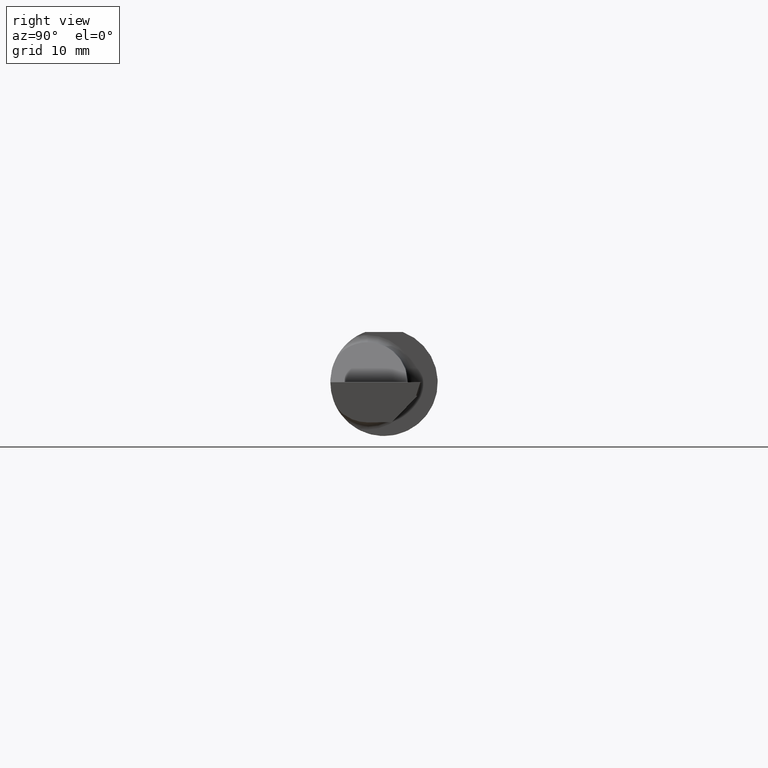
[diagram: clean part render]
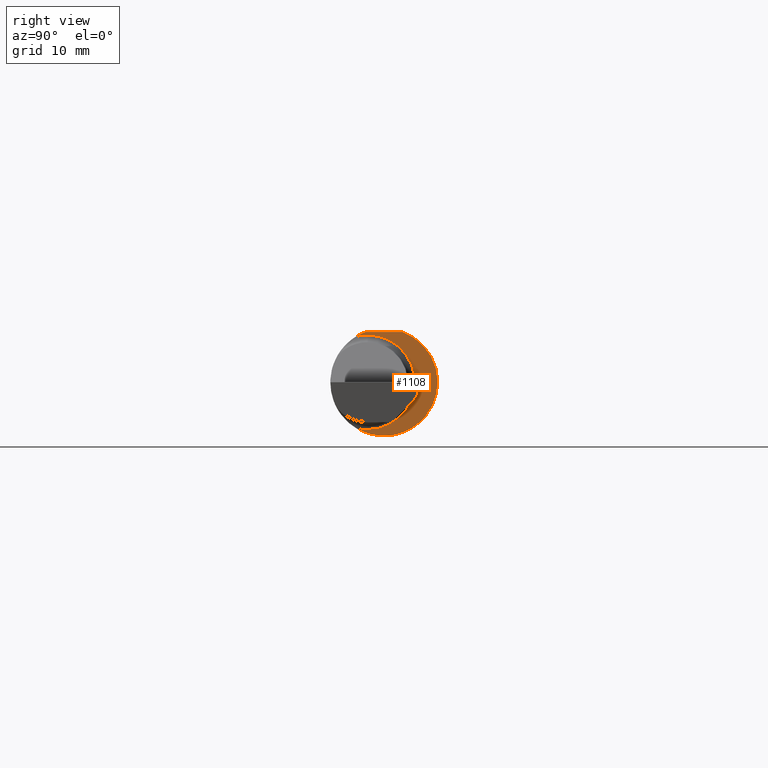
[diagram: same view with one face highlighted and labeled with its STEP entity id]
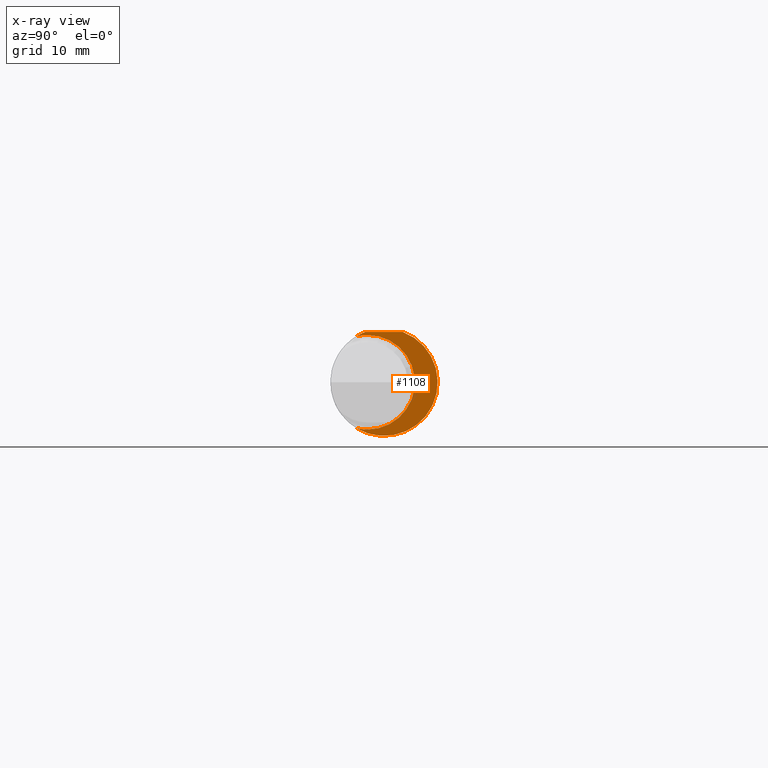
[diagram: x-ray of the same camera — body ghosted, the highlighted face saturated]
A machine part, right view. The second image highlights one B-rep face of the part: STEP entity #1108.
The next image is the same camera in x-ray: the body ghosted, the highlighted face saturated — about 3% of this face is hidden behind the body in this view.
In plain terms, the highlighted planar face has unit normal (1, 0, 0).
Its self-contained STEP definition (entity closure, byte-faithful):
#24 = DIRECTION ( 'NONE',  ( 0.000000000000000000, 0.000000000000000000, -1.000000000000000000 ) ) ;
#28 = EDGE_CURVE ( 'NONE', #464, #1081, #967, .T. ) ;
#62 = CARTESIAN_POINT ( 'NONE',  ( 1.949999999999999956, 0.1000000000000000194, 0.1753499999999999504 ) ) ;
#90 = CARTESIAN_POINT ( 'NONE',  ( 1.949999999999999956, 0.000000000000000000, 0.000000000000000000 ) ) ;
#106 = AXIS2_PLACEMENT_3D ( 'NONE', #90, #952, #283 ) ;
#151 = ORIENTED_EDGE ( 'NONE', *, *, #931, .T. ) ;
#173 = CARTESIAN_POINT ( 'NONE',  ( 1.949999999999999956, 0.2326500000000000512, 0.000000000000000000 ) ) ;
#206 = CARTESIAN_POINT ( 'NONE',  ( 1.949999999999999956, 0.06597272163553669078, 0.1753499999999999504 ) ) ;
#215 = ORIENTED_EDGE ( 'NONE', *, *, #279, .T. ) ;
#226 = CARTESIAN_POINT ( 'NONE',  ( 1.949999999999999956, 0.000000000000000000, 0.000000000000000000 ) ) ;
#240 = CARTESIAN_POINT ( 'NONE',  ( 1.949999999999999956, -0.05735000000000000514, -0.1650000000000000078 ) ) ;
#279 = EDGE_CURVE ( 'NONE', #518, #464, #686, .T. ) ;
#283 = DIRECTION ( 'NONE',  ( 0.000000000000000000, 0.000000000000000000, -1.000000000000000000 ) ) ;
#326 = VECTOR ( 'NONE', #364, 39.37007874015748143 ) ;
#340 = ORIENTED_EDGE ( 'NONE', *, *, #1169, .T. ) ;
#351 = CARTESIAN_POINT ( 'NONE',  ( 1.949999999999999956, -0.05735000000000000514, 0.000000000000000000 ) ) ;
#354 = DIRECTION ( 'NONE',  ( 0.000000000000000000, 0.000000000000000000, -1.000000000000000000 ) ) ;
#364 = DIRECTION ( 'NONE',  ( 0.000000000000000000, -1.000000000000000000, 0.000000000000000000 ) ) ;
#365 = DIRECTION ( 'NONE',  ( -1.000000000000000000, -0.000000000000000000, -0.000000000000000000 ) ) ;
#381 = PLANE ( 'NONE',  #669 ) ;
#385 = EDGE_LOOP ( 'NONE', ( #340, #151, #215, #659, #1219, #1053 ) ) ;
#394 = VERTEX_POINT ( 'NONE', #914 ) ;
#407 = AXIS2_PLACEMENT_3D ( 'NONE', #351, #521, #438 ) ;
#408 = CARTESIAN_POINT ( 'NONE',  ( 1.949999999999999956, -0.05735000000000000514, 0.000000000000000000 ) ) ;
#438 = DIRECTION ( 'NONE',  ( 0.000000000000000000, 5.329173169458695477E-15, -1.000000000000000000 ) ) ;
#464 = VERTEX_POINT ( 'NONE', #240 ) ;
#518 = VERTEX_POINT ( 'NONE', #598 ) ;
#521 = DIRECTION ( 'NONE',  ( -1.000000000000000000, -0.000000000000000000, -0.000000000000000000 ) ) ;
#598 = CARTESIAN_POINT ( 'NONE',  ( 1.949999999999999956, -0.05734999999999998432, 0.1650000000000000078 ) ) ;
#623 = EDGE_CURVE ( 'NONE', #773, #394, #741, .T. ) ;
#648 = DIRECTION ( 'NONE',  ( 1.000000000000000000, 0.000000000000000000, 0.000000000000000000 ) ) ;
#659 = ORIENTED_EDGE ( 'NONE', *, *, #28, .T. ) ;
#669 = AXIS2_PLACEMENT_3D ( 'NONE', #173, #648, #957 ) ;
#686 = CIRCLE ( 'NONE', #867, 0.1650000000000000078 ) ;
#701 = EDGE_CURVE ( 'NONE', #1081, #773, #707, .T. ) ;
#707 = CIRCLE ( 'NONE', #1052, 0.1873499999999999888 ) ;
#741 = LINE ( 'NONE', #62, #326 ) ;
#773 = VERTEX_POINT ( 'NONE', #206 ) ;
#840 = CARTESIAN_POINT ( 'NONE',  ( 1.949999999999999956, -0.05735000000000000514, 0.000000000000000000 ) ) ;
#851 = VERTEX_POINT ( 'NONE', #1179 ) ;
#859 = DIRECTION ( 'NONE',  ( 1.000000000000000000, 0.000000000000000000, 0.000000000000000000 ) ) ;
#867 = AXIS2_PLACEMENT_3D ( 'NONE', #408, #976, #1050 ) ;
#914 = CARTESIAN_POINT ( 'NONE',  ( 1.949999999999999956, -0.06597272163553676017, 0.1753499999999999504 ) ) ;
#931 = EDGE_CURVE ( 'NONE', #851, #518, #1010, .T. ) ;
#952 = DIRECTION ( 'NONE',  ( 1.000000000000000000, 0.000000000000000000, 0.000000000000000000 ) ) ;
#957 = DIRECTION ( 'NONE',  ( 0.000000000000000000, 0.000000000000000000, -1.000000000000000000 ) ) ;
#967 = CIRCLE ( 'NONE', #1049, 0.1650000000000000078 ) ;
#976 = DIRECTION ( 'NONE',  ( -1.000000000000000000, -0.000000000000000000, -0.000000000000000000 ) ) ;
#1010 = CIRCLE ( 'NONE', #407, 0.1650000000000000078 ) ;
#1049 = AXIS2_PLACEMENT_3D ( 'NONE', #840, #365, #354 ) ;
#1050 = DIRECTION ( 'NONE',  ( 0.000000000000000000, 0.000000000000000000, -1.000000000000000000 ) ) ;
#1052 = AXIS2_PLACEMENT_3D ( 'NONE', #226, #859, #24 ) ;
#1053 = ORIENTED_EDGE ( 'NONE', *, *, #623, .T. ) ;
#1081 = VERTEX_POINT ( 'NONE', #1132 ) ;
#1108 = ADVANCED_FACE ( 'NONE', ( #1237 ), #381, .T. ) ;
#1132 = CARTESIAN_POINT ( 'NONE',  ( 1.949999999999999956, -0.09733256320836958242, -0.1600824619978364061 ) ) ;
#1169 = EDGE_CURVE ( 'NONE', #394, #851, #1187, .T. ) ;
#1179 = CARTESIAN_POINT ( 'NONE',  ( 1.949999999999999956, -0.09733256320836958242, 0.1600824619978364061 ) ) ;
#1187 = CIRCLE ( 'NONE', #106, 0.1873499999999999888 ) ;
#1219 = ORIENTED_EDGE ( 'NONE', *, *, #701, .T. ) ;
#1237 = FACE_OUTER_BOUND ( 'NONE', #385, .T. ) ;